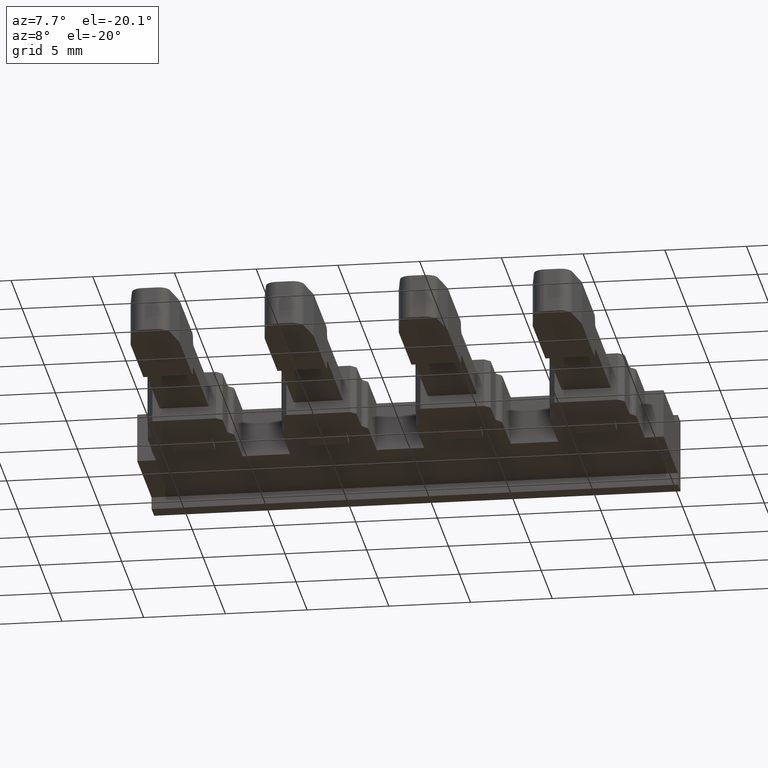
[diagram: clean part render]
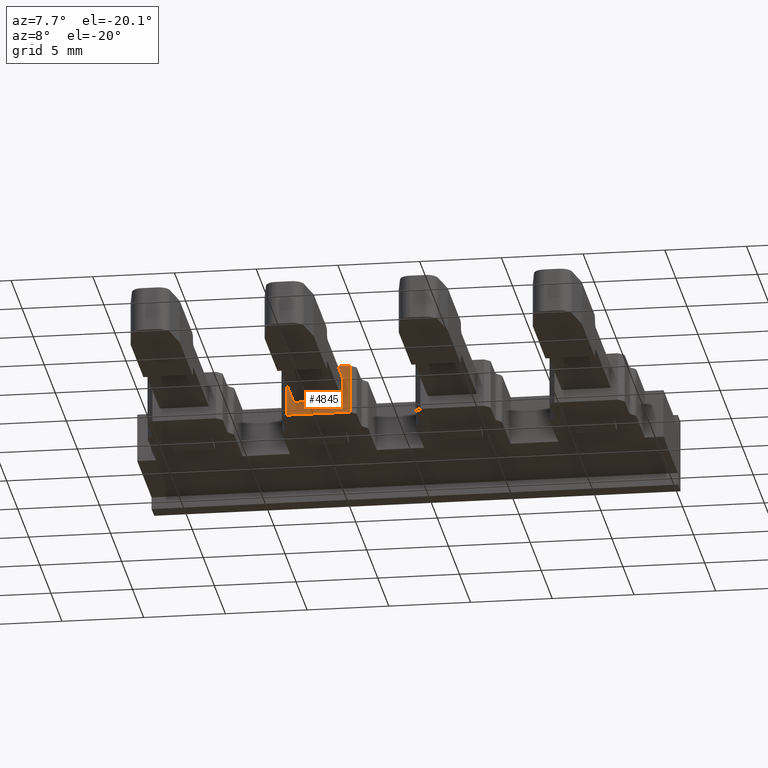
[diagram: same view with one face highlighted and labeled with its STEP entity id]
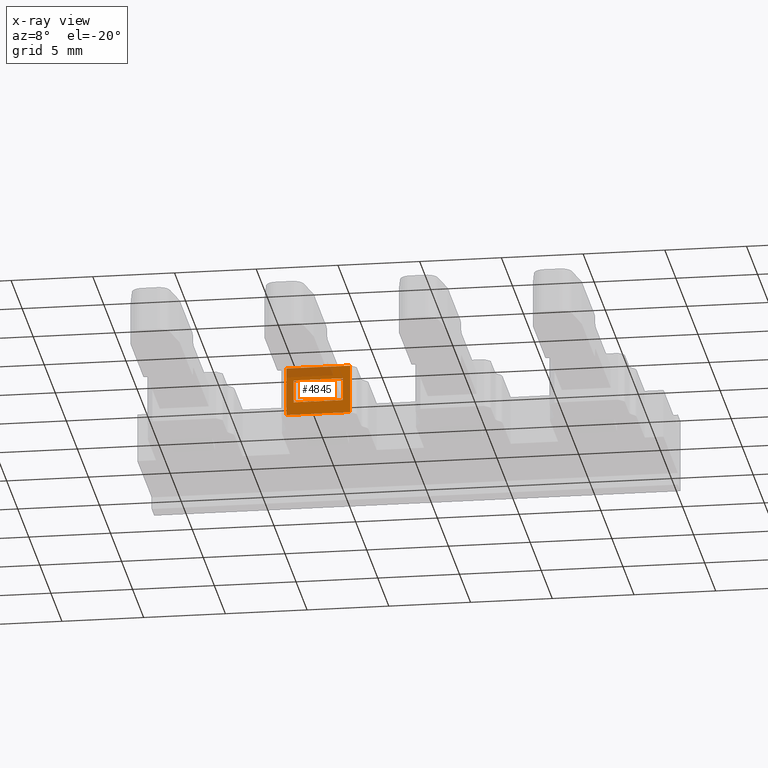
[diagram: x-ray of the same camera — body ghosted, the highlighted face saturated]
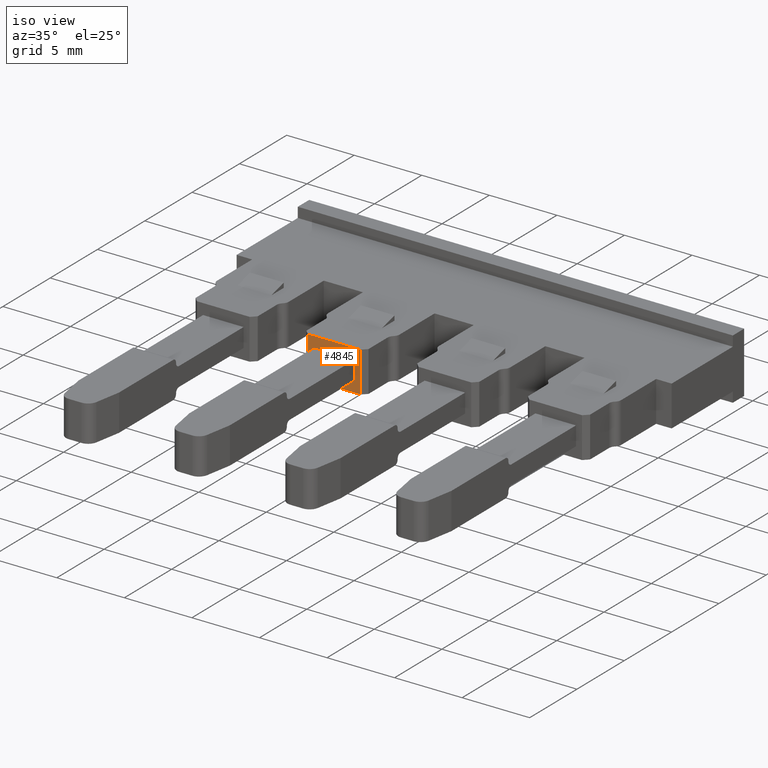
[diagram: same view with one face highlighted and labeled with its STEP entity id]
A machine part, auxiliary view. The second image highlights one B-rep face of the part: STEP entity #4845.
The next image is the same camera in x-ray: the body ghosted, the highlighted face saturated — about 22% of this face is hidden behind the body in this view.
A second angle (iso view) of the same face is appended — the face is thin or edge-on in the first view.
In plain terms, the highlighted planar face has unit normal (0, -1, -0).
Its self-contained STEP definition (entity closure, byte-faithful):
#82 = VERTEX_POINT ( 'NONE', #571 ) ;
#119 = VERTEX_POINT ( 'NONE', #562 ) ;
#135 = VERTEX_POINT ( 'NONE', #536 ) ;
#139 = VERTEX_POINT ( 'NONE', #517 ) ;
#147 = VERTEX_POINT ( 'NONE', #612 ) ;
#159 = VERTEX_POINT ( 'NONE', #584 ) ;
#301 = EDGE_LOOP ( 'NONE', ( #3295, #3329, #3358, #3330 ) ) ;
#358 = EDGE_LOOP ( 'NONE', ( #3323, #3368, #3360, #3307 ) ) ;
#517 = CARTESIAN_POINT ( 'NONE',  ( 1136.294494728929100, 659.6092820011524500, 2.199999999999970000 ) ) ;
#536 = CARTESIAN_POINT ( 'NONE',  ( 1133.294493552393500, 659.6092820011524500, 2.199999999999889600 ) ) ;
#562 = CARTESIAN_POINT ( 'NONE',  ( 1132.844464850728400, 659.6092820011524500, -8.673617379884035500E-016 ) ) ;
#571 = CARTESIAN_POINT ( 'NONE',  ( 1136.744471264188200, 659.6092820011524500, -1.301042606982605300E-015 ) ) ;
#584 = CARTESIAN_POINT ( 'NONE',  ( 1133.294493308298800, 659.6092820011524500, 0.8000061035155680000 ) ) ;
#612 = CARTESIAN_POINT ( 'NONE',  ( 1136.294496906175000, 659.6092820011524500, 0.8000061035156755800 ) ) ;
#646 = CARTESIAN_POINT ( 'NONE',  ( 1136.744471264188200, 659.6092820011524500, 3.000000000000000000 ) ) ;
#752 = CARTESIAN_POINT ( 'NONE',  ( 1132.844464850728400, 659.6092820011524500, 3.000000000000000000 ) ) ;
#1246 = VERTEX_POINT ( 'NONE', #646 ) ;
#1286 = VERTEX_POINT ( 'NONE', #752 ) ;
#1408 = LINE ( 'NONE', #1409, #4573 ) ;
#1409 = CARTESIAN_POINT ( 'NONE',  ( 1132.844464850728400, 659.6092820011524500, 3.760000000001021200 ) ) ;
#1422 = DIRECTION ( 'NONE',  ( 0.0000000000000000000, 2.347622273454535200E-024, -1.000000000000000000 ) ) ;
#1438 = LINE ( 'NONE', #1439, #4575 ) ;
#1439 = CARTESIAN_POINT ( 'NONE',  ( 1133.294493180532800, 659.6092820011524500, 1.499999999999889400 ) ) ;
#1440 = DIRECTION ( 'NONE',  ( -5.364441115151282900E-014, -4.375089443188943600E-021, 1.000000000000000000 ) ) ;
#1541 = LINE ( 'NONE', #1554, #4637 ) ;
#1546 = CARTESIAN_POINT ( 'NONE',  ( 1150.034848447493000, 659.6092820011524500, 0.8000061035156759100 ) ) ;
#1549 = DIRECTION ( 'NONE',  ( -1.000000000000000000, -1.259332280444392000E-037, -2.956436511251547900E-061 ) ) ;
#1554 = CARTESIAN_POINT ( 'NONE',  ( 1136.294494728929300, 659.6092820011524500, 1.500000000000050400 ) ) ;
#1556 = DIRECTION ( 'NONE',  ( 5.364441115148562900E-014, 3.842404488664303600E-020, -1.000000000000000000 ) ) ;
#1570 = LINE ( 'NONE', #1546, #4669 ) ;
#1590 = DIRECTION ( 'NONE',  ( -0.0000000000000000000, -2.347622273454535200E-024, 1.000000000000000000 ) ) ;
#1613 = CARTESIAN_POINT ( 'NONE',  ( 1136.744471264188200, 659.6092820011524500, 3.760000000001021200 ) ) ;
#1618 = LINE ( 'NONE', #1613, #4621 ) ;
#2265 = CARTESIAN_POINT ( 'NONE',  ( 1150.034848447493000, 659.6092820011524500, 3.760000000001021200 ) ) ;
#2271 = FACE_OUTER_BOUND ( 'NONE', #301, .T. ) ;
#2276 = DIRECTION ( 'NONE',  ( 0.0000000000000000000, 2.347622273454535200E-024, -1.000000000000000000 ) ) ;
#2282 = FACE_BOUND ( 'NONE', #358, .T. ) ;
#2284 = PLANE ( 'NONE',  #4267 ) ;
#2315 = DIRECTION ( 'NONE',  ( 1.259332280444392000E-037, -1.000000000000000000, -2.347622273454535200E-024 ) ) ;
#2733 = LINE ( 'NONE', #2737, #4374 ) ;
#2737 = CARTESIAN_POINT ( 'NONE',  ( 1150.034848447493000, 659.6092820011524500, 3.000000000000000000 ) ) ;
#2754 = DIRECTION ( 'NONE',  ( -1.000000000000000000, -1.259332280444392000E-037, -2.956436511251547900E-061 ) ) ;
#3035 = CARTESIAN_POINT ( 'NONE',  ( 1150.034848447493000, 659.6092820011524500, 2.199999999999889600 ) ) ;
#3061 = LINE ( 'NONE', #3035, #4531 ) ;
#3069 = DIRECTION ( 'NONE',  ( 1.000000000000000000, 1.259332280444392000E-037, 2.956436511251547900E-061 ) ) ;
#3080 = LINE ( 'NONE', #3089, #4516 ) ;
#3089 = CARTESIAN_POINT ( 'NONE',  ( 1136.944468391975100, 659.6092820011524500, 0.0000000000000000000 ) ) ;
#3101 = DIRECTION ( 'NONE',  ( 1.000000000000000000, 0.0000000000000000000, -0.0000000000000000000 ) ) ;
#3295 = ORIENTED_EDGE ( 'NONE', *, *, #4953, .T. ) ;
#3307 = ORIENTED_EDGE ( 'NONE', *, *, #5127, .T. ) ;
#3323 = ORIENTED_EDGE ( 'NONE', *, *, #5057, .T. ) ;
#3329 = ORIENTED_EDGE ( 'NONE', *, *, #5125, .T. ) ;
#3330 = ORIENTED_EDGE ( 'NONE', *, *, #5175, .T. ) ;
#3358 = ORIENTED_EDGE ( 'NONE', *, *, #5062, .T. ) ;
#3360 = ORIENTED_EDGE ( 'NONE', *, *, #5166, .T. ) ;
#3368 = ORIENTED_EDGE ( 'NONE', *, *, #5164, .T. ) ;
#4267 = AXIS2_PLACEMENT_3D ( 'NONE', #2265, #2315, #2276 ) ;
#4374 = VECTOR ( 'NONE', #2754, 1000.000000000000000 ) ;
#4516 = VECTOR ( 'NONE', #3101, 1000.000000000000000 ) ;
#4531 = VECTOR ( 'NONE', #3069, 1000.000000000000000 ) ;
#4573 = VECTOR ( 'NONE', #1422, 1000.000000000000000 ) ;
#4575 = VECTOR ( 'NONE', #1440, 1000.000000000000000 ) ;
#4621 = VECTOR ( 'NONE', #1590, 1000.000000000000000 ) ;
#4637 = VECTOR ( 'NONE', #1556, 1000.000000000000000 ) ;
#4669 = VECTOR ( 'NONE', #1549, 1000.000000000000000 ) ;
#4845 = ADVANCED_FACE ( 'NONE', ( #2282, #2271 ), #2284, .T. ) ;
#4953 = EDGE_CURVE ( 'NONE', #1246, #1286, #2733, .T. ) ;
#5057 = EDGE_CURVE ( 'NONE', #135, #139, #3061, .T. ) ;
#5062 = EDGE_CURVE ( 'NONE', #119, #82, #3080, .T. ) ;
#5125 = EDGE_CURVE ( 'NONE', #1286, #119, #1408, .T. ) ;
#5127 = EDGE_CURVE ( 'NONE', #159, #135, #1438, .T. ) ;
#5164 = EDGE_CURVE ( 'NONE', #139, #147, #1541, .T. ) ;
#5166 = EDGE_CURVE ( 'NONE', #147, #159, #1570, .T. ) ;
#5175 = EDGE_CURVE ( 'NONE', #82, #1246, #1618, .T. ) ;